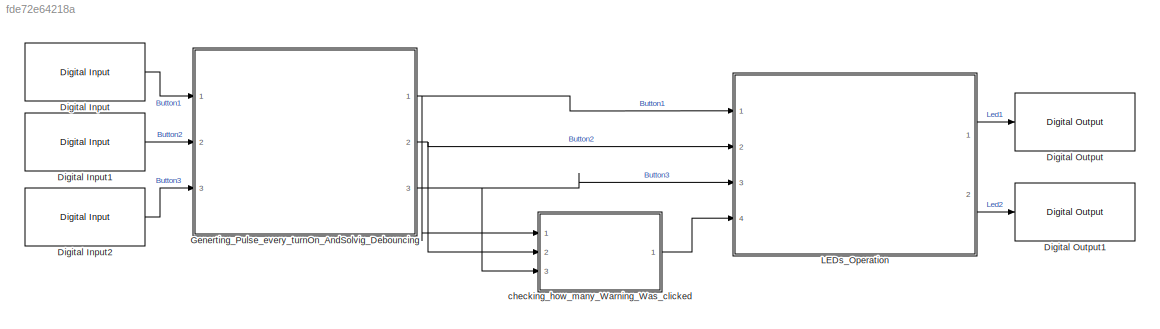
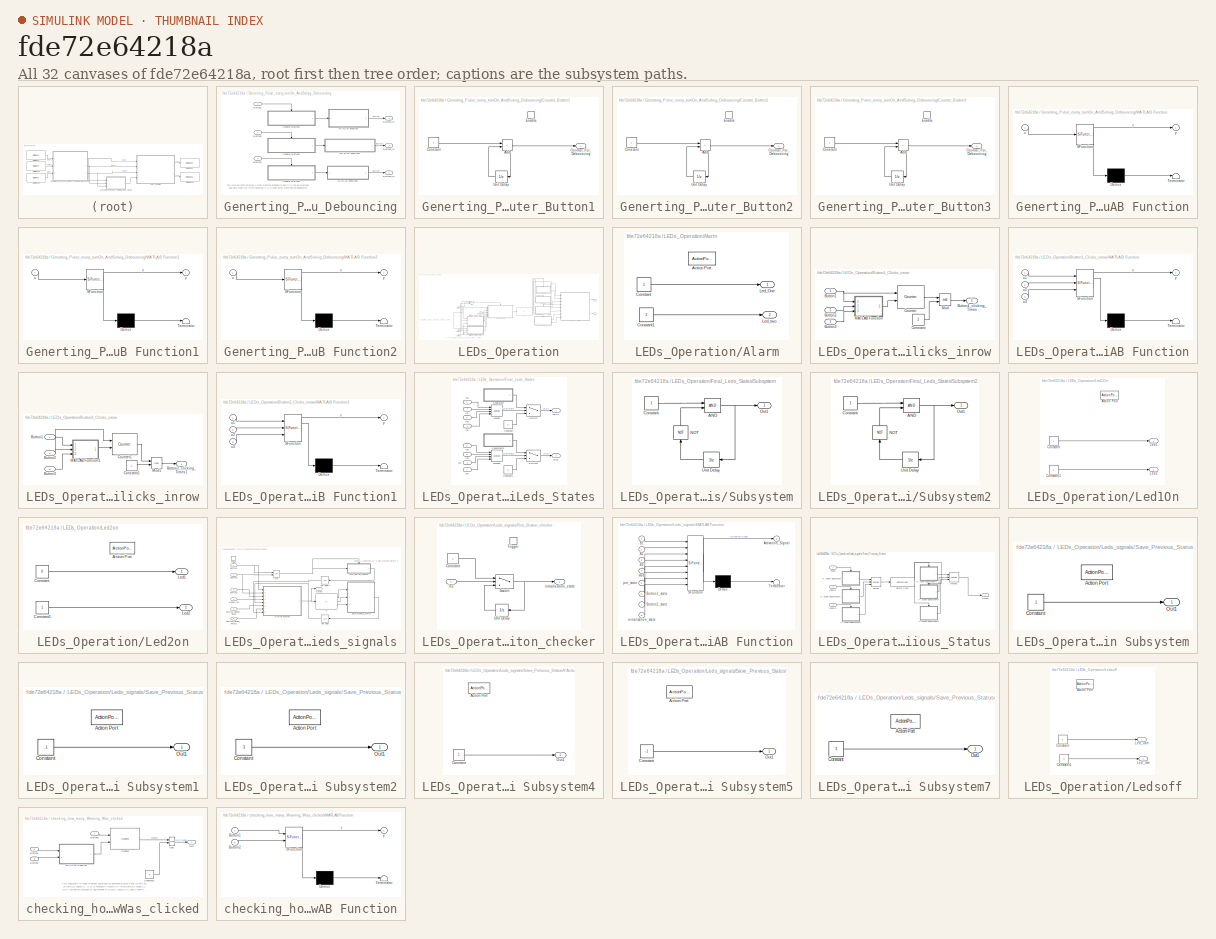
[diagram: thumbnail index - all 32 canvases of the model, root first then tree order]
MODEL slx_fde72e64218a
KIND model
CONFIG AbsTol = auto
CONFIG EnableMultiTasking = off
CONFIG FixedStep = 1e-3
CONFIG MaxStep = auto
CONFIG MinStep = auto
CONFIG RelTol = 1e-3
CONFIG SampleTimeConstraint = Unconstrained
CONFIG SolverName = FixedStepDiscrete
CONFIG StartTime = 0.0
CONFIG StopTime = 10.0
BLOCK [Reference] Digital Input  REF=arduinolib/Digital Input
  Ports = [0, 1]
  SourceBlock = arduinolib/Digital Input
  SourceType = Arduino Digital Input
BLOCK [Reference] Digital Input1  REF=arduinolib/Digital Input
  Ports = [0, 1]
  SourceBlock = arduinolib/Digital Input
  SourceType = Arduino Digital Input
BLOCK [Reference] Digital Input2  REF=arduinolib/Digital Input
  Ports = [0, 1]
  SourceBlock = arduinolib/Digital Input
  SourceType = Arduino Digital Input
BLOCK [Reference] Digital Output  REF=arduinolib/Digital Output
  Ports = [1]
  SourceBlock = arduinolib/Digital Output
  SourceType = Arduino Digital Output
BLOCK [Reference] Digital Output1  REF=arduinolib/Digital Output
  Ports = [1]
  SourceBlock = arduinolib/Digital Output
  SourceType = Arduino Digital Output
BLOCK [SubSystem] Generting_Pulse_every_turnOn_AndSolvig_Debouncing
  Ports = [3, 3]
BLOCK [Inport] Generting_Pulse_every_turnOn_AndSolvig_Debouncing/Button1
BLOCK [Outport] Generting_Pulse_every_turnOn_AndSolvig_Debouncing/Button1_in
BLOCK [Inport] Generting_Pulse_every_turnOn_AndSolvig_Debouncing/Button2
  Port = 2
BLOCK [Outport] Generting_Pulse_every_turnOn_AndSolvig_Debouncing/Button2_in
  Port = 2
BLOCK [Inport] Generting_Pulse_every_turnOn_AndSolvig_Debouncing/Button3
  Port = 3
BLOCK [Outport] Generting_Pulse_every_turnOn_AndSolvig_Debouncing/Button3_in
  Port = 3
BLOCK [SubSystem] Generting_Pulse_every_turnOn_AndSolvig_Debouncing/Counter_Button1
  Ports = [0, 1, 1]
  TreatAsAtomicUnit = on
BLOCK [Sum] Generting_Pulse_every_turnOn_AndSolvig_Debouncing/Counter_Button1/Add
  IconShape = rectangular
  Ports = [2, 1]
BLOCK [Constant] Generting_Pulse_every_turnOn_AndSolvig_Debouncing/Counter_Button1/Constant
BLOCK [Outport] Generting_Pulse_every_turnOn_AndSolvig_Debouncing/Counter_Button1/Counter_For_Debouncing
BLOCK [EnablePort] Generting_Pulse_every_turnOn_AndSolvig_Debouncing/Counter_Button1/Enable
  Ports = []
  StatesWhenEnabling = reset
BLOCK [UnitDelay] Generting_Pulse_every_turnOn_AndSolvig_Debouncing/Counter_Button1/Unit Delay
  HasFrameUpgradeWarning = on
  SampleTime = 1e-3
BLOCK [SubSystem] Generting_Pulse_every_turnOn_AndSolvig_Debouncing/Counter_Button2
  Ports = [0, 1, 1]
  TreatAsAtomicUnit = on
BLOCK [Sum] Generting_Pulse_every_turnOn_AndSolvig_Debouncing/Counter_Button2/Add
  IconShape = rectangular
  Ports = [2, 1]
BLOCK [Constant] Generting_Pulse_every_turnOn_AndSolvig_Debouncing/Counter_Button2/Constant
BLOCK [Outport] Generting_Pulse_every_turnOn_AndSolvig_Debouncing/Counter_Button2/Counter_For_Debouncing
BLOCK [EnablePort] Generting_Pulse_every_turnOn_AndSolvig_Debouncing/Counter_Button2/Enable
  Ports = []
  StatesWhenEnabling = reset
BLOCK [UnitDelay] Generting_Pulse_every_turnOn_AndSolvig_Debouncing/Counter_Button2/Unit Delay
  HasFrameUpgradeWarning = on
  SampleTime = 1e-3
BLOCK [SubSystem] Generting_Pulse_every_turnOn_AndSolvig_Debouncing/Counter_Button3
  Ports = [0, 1, 1]
  TreatAsAtomicUnit = on
BLOCK [Sum] Generting_Pulse_every_turnOn_AndSolvig_Debouncing/Counter_Button3/Add
  IconShape = rectangular
  Ports = [2, 1]
BLOCK [Constant] Generting_Pulse_every_turnOn_AndSolvig_Debouncing/Counter_Button3/Constant
BLOCK [Outport] Generting_Pulse_every_turnOn_AndSolvig_Debouncing/Counter_Button3/Counter_For_Debouncing
BLOCK [EnablePort] Generting_Pulse_every_turnOn_AndSolvig_Debouncing/Counter_Button3/Enable
  Ports = []
  StatesWhenEnabling = reset
BLOCK [UnitDelay] Generting_Pulse_every_turnOn_AndSolvig_Debouncing/Counter_Button3/Unit Delay
  HasFrameUpgradeWarning = on
  SampleTime = 1e-3
BLOCK [SubSystem] Generting_Pulse_every_turnOn_AndSolvig_Debouncing/MATLAB Function
  ErrorFcn = Stateflow.Translate.translate
  PermitHierarchicalResolution = ExplicitOnly
  Ports = [1, 1]
  SFBlockType = MATLAB Function
  TreatAsAtomicUnit = on
BLOCK [Demux] Generting_Pulse_every_turnOn_AndSolvig_Debouncing/MATLAB Function/ Demux 
  Outputs = 1
  Ports = [1, 1]
BLOCK [S-Function] Generting_Pulse_every_turnOn_AndSolvig_Debouncing/MATLAB Function/ SFunction 
  EnableBusSupport = on
  FunctionName = sf_sfun
  PortCounts = [1 2]
  Ports = [1, 2]
  SFcnIsStateOwnerBlock = off
  SFunctionDeploymentMode = off
  Tag = Stateflow S-Function 3
BLOCK [Terminator] Generting_Pulse_every_turnOn_AndSolvig_Debouncing/MATLAB Function/ Terminator 
BLOCK [Inport] Generting_Pulse_every_turnOn_AndSolvig_Debouncing/MATLAB Function/u
BLOCK [Outport] Generting_Pulse_every_turnOn_AndSolvig_Debouncing/MATLAB Function/y
BLOCK [SubSystem] Generting_Pulse_every_turnOn_AndSolvig_Debouncing/MATLAB Function1
  ErrorFcn = Stateflow.Translate.translate
  PermitHierarchicalResolution = ExplicitOnly
  Ports = [1, 1]
  SFBlockType = MATLAB Function
  TreatAsAtomicUnit = on
BLOCK [Demux] Generting_Pulse_every_turnOn_AndSolvig_Debouncing/MATLAB Function1/ Demux 
  Outputs = 1
  Ports = [1, 1]
BLOCK [S-Function] Generting_Pulse_every_turnOn_AndSolvig_Debouncing/MATLAB Function1/ SFunction 
  EnableBusSupport = on
  FunctionName = sf_sfun
  PortCounts = [1 2]
  Ports = [1, 2]
  SFcnIsStateOwnerBlock = off
  SFunctionDeploymentMode = off
  Tag = Stateflow S-Function 4
BLOCK [Terminator] Generting_Pulse_every_turnOn_AndSolvig_Debouncing/MATLAB Function1/ Terminator 
BLOCK [Inport] Generting_Pulse_every_turnOn_AndSolvig_Debouncing/MATLAB Function1/u
BLOCK [Outport] Generting_Pulse_every_turnOn_AndSolvig_Debouncing/MATLAB Function1/y
BLOCK [SubSystem] Generting_Pulse_every_turnOn_AndSolvig_Debouncing/MATLAB Function2
  ErrorFcn = Stateflow.Translate.translate
  PermitHierarchicalResolution = ExplicitOnly
  Ports = [1, 1]
  SFBlockType = MATLAB Function
  TreatAsAtomicUnit = on
BLOCK [Demux] Generting_Pulse_every_turnOn_AndSolvig_Debouncing/MATLAB Function2/ Demux 
  Outputs = 1
  Ports = [1, 1]
BLOCK [S-Function] Generting_Pulse_every_turnOn_AndSolvig_Debouncing/MATLAB Function2/ SFunction 
  EnableBusSupport = on
  FunctionName = sf_sfun
  PortCounts = [1 2]
  Ports = [1, 2]
  SFcnIsStateOwnerBlock = off
  SFunctionDeploymentMode = off
  Tag = Stateflow S-Function 1
BLOCK [Terminator] Generting_Pulse_every_turnOn_AndSolvig_Debouncing/MATLAB Function2/ Terminator 
BLOCK [Inport] Generting_Pulse_every_turnOn_AndSolvig_Debouncing/MATLAB Function2/u
BLOCK [Outport] Generting_Pulse_every_turnOn_AndSolvig_Debouncing/MATLAB Function2/y
BLOCK [SubSystem] LEDs_Operation
  Ports = [4, 2]
BLOCK [SubSystem] LEDs_Operation/Alarm
  Ports = [0, 2, 0, 0, 0, 0, 0, 1]
  TreatAsAtomicUnit = on
BLOCK [ActionPort] LEDs_Operation/Alarm/Action Port
  ActionPortLabel = elseif( u1 ==2 )
BLOCK [Constant] LEDs_Operation/Alarm/Constant
BLOCK [Constant] LEDs_Operation/Alarm/Constant1
BLOCK [Outport] LEDs_Operation/Alarm/Led_One
BLOCK [Outport] LEDs_Operation/Alarm/Led_two
  Port = 2
BLOCK [Inport] LEDs_Operation/Button1
BLOCK [SubSystem] LEDs_Operation/Button1_Clicks_inrow
  Ports = [3, 1]
BLOCK [Inport] LEDs_Operation/Button1_Clicks_inrow/Button1
BLOCK [Outport] LEDs_Operation/Button1_Clicks_inrow/Button1_clicking_Times
BLOCK [Inport] LEDs_Operation/Button1_Clicks_inrow/Button2
  Port = 2
BLOCK [Inport] LEDs_Operation/Button1_Clicks_inrow/Button3
  Port = 3
BLOCK [Constant] LEDs_Operation/Button1_Clicks_inrow/Constant
  Value = 2
BLOCK [Reference] LEDs_Operation/Button1_Clicks_inrow/Counter  REF=dspswit3/Counter
  Ports = [2, 1]
  SourceBlock = dspswit3/Counter
  SourceType = Counter
BLOCK [SubSystem] LEDs_Operation/Button1_Clicks_inrow/MATLAB Function
  ErrorFcn = Stateflow.Translate.translate
  PermitHierarchicalResolution = ExplicitOnly
  Ports = [3, 1]
  SFBlockType = MATLAB Function
  TreatAsAtomicUnit = on
BLOCK [Demux] LEDs_Operation/Button1_Clicks_inrow/MATLAB Function/ Demux 
  Outputs = 1
  Ports = [1, 1]
BLOCK [S-Function] LEDs_Operation/Button1_Clicks_inrow/MATLAB Function/ SFunction 
  EnableBusSupport = on
  FunctionName = sf_sfun
  PortCounts = [3 2]
  Ports = [3, 2]
  SFcnIsStateOwnerBlock = off
  SFunctionDeploymentMode = off
  Tag = Stateflow S-Function 8
BLOCK [Terminator] LEDs_Operation/Button1_Clicks_inrow/MATLAB Function/ Terminator 
BLOCK [Inport] LEDs_Operation/Button1_Clicks_inrow/MATLAB Function/u1
BLOCK [Inport] LEDs_Operation/Button1_Clicks_inrow/MATLAB Function/u2
  Port = 2
BLOCK [Inport] LEDs_Operation/Button1_Clicks_inrow/MATLAB Function/u3
  Port = 3
BLOCK [Outport] LEDs_Operation/Button1_Clicks_inrow/MATLAB Function/y
BLOCK [Math] LEDs_Operation/Button1_Clicks_inrow/Mod
  Operator = mod
  Ports = [2, 1]
BLOCK [Inport] LEDs_Operation/Button2
  Port = 2
BLOCK [SubSystem] LEDs_Operation/Button2_Clicks_inrow
  Ports = [3, 1]
BLOCK [Inport] LEDs_Operation/Button2_Clicks_inrow/Button1
BLOCK [Inport] LEDs_Operation/Button2_Clicks_inrow/Button2
  Port = 2
BLOCK [Outport] LEDs_Operation/Button2_Clicks_inrow/Button2_clicking_Times1
BLOCK [Inport] LEDs_Operation/Button2_Clicks_inrow/Button3
  Port = 3
BLOCK [Constant] LEDs_Operation/Button2_Clicks_inrow/Constant1
  Value = 2
BLOCK [Reference] LEDs_Operation/Button2_Clicks_inrow/Counter1  REF=dspswit3/Counter
  Ports = [2, 1]
  SourceBlock = dspswit3/Counter
  SourceType = Counter
BLOCK [SubSystem] LEDs_Operation/Button2_Clicks_inrow/MATLAB Function1
  ErrorFcn = Stateflow.Translate.translate
  PermitHierarchicalResolution = ExplicitOnly
  Ports = [3, 1]
  SFBlockType = MATLAB Function
  TreatAsAtomicUnit = on
BLOCK [Demux] LEDs_Operation/Button2_Clicks_inrow/MATLAB Function1/ Demux 
  Outputs = 1
  Ports = [1, 1]
BLOCK [S-Function] LEDs_Operation/Button2_Clicks_inrow/MATLAB Function1/ SFunction 
  EnableBusSupport = on
  FunctionName = sf_sfun
  PortCounts = [3 2]
  Ports = [3, 2]
  SFcnIsStateOwnerBlock = off
  SFunctionDeploymentMode = off
  Tag = Stateflow S-Function 6
BLOCK [Terminator] LEDs_Operation/Button2_Clicks_inrow/MATLAB Function1/ Terminator 
BLOCK [Inport] LEDs_Operation/Button2_Clicks_inrow/MATLAB Function1/u1
BLOCK [Inport] LEDs_Operation/Button2_Clicks_inrow/MATLAB Function1/u2
  Port = 2
BLOCK [Inport] LEDs_Operation/Button2_Clicks_inrow/MATLAB Function1/u3
  Port = 3
BLOCK [Outport] LEDs_Operation/Button2_Clicks_inrow/MATLAB Function1/y
BLOCK [Math] LEDs_Operation/Button2_Clicks_inrow/Mod1
  Operator = mod
  Ports = [2, 1]
BLOCK [Inport] LEDs_Operation/Button3
  Port = 3
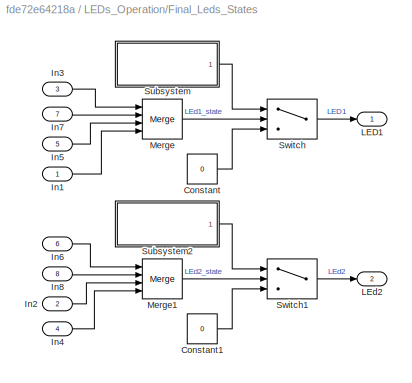
BLOCK [SubSystem] LEDs_Operation/Final_Leds_States
  Ports = [8, 2]
BLOCK [Constant] LEDs_Operation/Final_Leds_States/Constant
  Value = 0
BLOCK [Constant] LEDs_Operation/Final_Leds_States/Constant1
  Value = 0
BLOCK [Inport] LEDs_Operation/Final_Leds_States/In1
BLOCK [Inport] LEDs_Operation/Final_Leds_States/In2
  Port = 2
BLOCK [Inport] LEDs_Operation/Final_Leds_States/In3
  Port = 3
BLOCK [Inport] LEDs_Operation/Final_Leds_States/In4
  Port = 4
BLOCK [Inport] LEDs_Operation/Final_Leds_States/In5
  Port = 5
BLOCK [Inport] LEDs_Operation/Final_Leds_States/In6
  Port = 6
BLOCK [Inport] LEDs_Operation/Final_Leds_States/In7
  Port = 7
BLOCK [Inport] LEDs_Operation/Final_Leds_States/In8
  Port = 8
BLOCK [Outport] LEDs_Operation/Final_Leds_States/LED1
BLOCK [Outport] LEDs_Operation/Final_Leds_States/LEd2
  Port = 2
BLOCK [Merge] LEDs_Operation/Final_Leds_States/Merge
  Inputs = 4
  Ports = [4, 1]
BLOCK [Merge] LEDs_Operation/Final_Leds_States/Merge1
  Inputs = 4
  Ports = [4, 1]
BLOCK [SubSystem] LEDs_Operation/Final_Leds_States/Subsystem
  Ports = [0, 1]
BLOCK [Logic] LEDs_Operation/Final_Leds_States/Subsystem/AND
  AllPortsSameDT = off
  IconShape = distinctive
  OutDataTypeStr = boolean
  Ports = [2, 1]
BLOCK [Constant] LEDs_Operation/Final_Leds_States/Subsystem/Constant
BLOCK [Logic] LEDs_Operation/Final_Leds_States/Subsystem/NOT
  AllPortsSameDT = off
  IconShape = distinctive
  NameLocation = right
  Operator = NOT
  OutDataTypeStr = boolean
  Ports = [1, 1]
BLOCK [Outport] LEDs_Operation/Final_Leds_States/Subsystem/Out1
BLOCK [UnitDelay] LEDs_Operation/Final_Leds_States/Subsystem/Unit Delay
  HasFrameUpgradeWarning = on
  InitialCondition = 1
  SampleTime = 0.4
BLOCK [SubSystem] LEDs_Operation/Final_Leds_States/Subsystem2
  Ports = [0, 1]
BLOCK [Logic] LEDs_Operation/Final_Leds_States/Subsystem2/AND
  AllPortsSameDT = off
  IconShape = distinctive
  OutDataTypeStr = boolean
  Ports = [2, 1]
BLOCK [Constant] LEDs_Operation/Final_Leds_States/Subsystem2/Constant
BLOCK [Logic] LEDs_Operation/Final_Leds_States/Subsystem2/NOT
  AllPortsSameDT = off
  IconShape = distinctive
  NameLocation = right
  Operator = NOT
  OutDataTypeStr = boolean
  Ports = [1, 1]
BLOCK [Outport] LEDs_Operation/Final_Leds_States/Subsystem2/Out1
BLOCK [UnitDelay] LEDs_Operation/Final_Leds_States/Subsystem2/Unit Delay
  HasFrameUpgradeWarning = on
  InitialCondition = 1
  SampleTime = 0.4
BLOCK [Switch] LEDs_Operation/Final_Leds_States/Switch
  Criteria = u2 > Threshold
  InputSameDT = off
  SaturateOnIntegerOverflow = off
BLOCK [Switch] LEDs_Operation/Final_Leds_States/Switch1
  Criteria = u2 > Threshold
  InputSameDT = off
  SaturateOnIntegerOverflow = off
BLOCK [If] LEDs_Operation/If
  ElseIfExpressions = u1 == -1 , u1 ==2 , u1==3
  IfExpression = u1 ==1
  Ports = [1, 4]
  ShowElse = off
BLOCK [Outport] LEDs_Operation/Led1
BLOCK [SubSystem] LEDs_Operation/Led1On
  Ports = [0, 2, 0, 0, 0, 0, 0, 1]
  TreatAsAtomicUnit = on
BLOCK [ActionPort] LEDs_Operation/Led1On/Action Port
  ActionPortLabel = if(u1 ==1)
BLOCK [Constant] LEDs_Operation/Led1On/Constant
BLOCK [Constant] LEDs_Operation/Led1On/Constant1
  Value = 0
BLOCK [Outport] LEDs_Operation/Led1On/Led1
BLOCK [Outport] LEDs_Operation/Led1On/Led2
  Port = 2
BLOCK [Outport] LEDs_Operation/Led2
  Port = 2
BLOCK [SubSystem] LEDs_Operation/Led2on
  Ports = [0, 2, 0, 0, 0, 0, 0, 1]
  TreatAsAtomicUnit = on
BLOCK [ActionPort] LEDs_Operation/Led2on/Action Port
  ActionPortLabel = elseif(u1 == -1 )
BLOCK [Constant] LEDs_Operation/Led2on/Constant
  Value = 0
BLOCK [Constant] LEDs_Operation/Led2on/Constant1
BLOCK [Outport] LEDs_Operation/Led2on/Led1
BLOCK [Outport] LEDs_Operation/Led2on/Led2
  Port = 2
BLOCK [SubSystem] LEDs_Operation/Leds_signals
  Ports = [6, 1, 0, 1]
  TreatAsAtomicUnit = on
BLOCK [Inport] LEDs_Operation/Leds_signals/Button1
BLOCK [Inport] LEDs_Operation/Leds_signals/Button1_clicking_Times
  Port = 5
BLOCK [Inport] LEDs_Operation/Leds_signals/Button2
  Port = 2
BLOCK [Inport] LEDs_Operation/Leds_signals/Button2_clicking_Times1
  Port = 6
BLOCK [Inport] LEDs_Operation/Leds_signals/Button3
  Port = 3
BLOCK [SubSystem] LEDs_Operation/Leds_signals/First_Button_checker
  Ports = [1, 1, 0, 1]
  TreatAsAtomicUnit = on
BLOCK [Constant] LEDs_Operation/Leds_signals/First_Button_checker/Constant
BLOCK [Inport] LEDs_Operation/Leds_signals/First_Button_checker/In1
BLOCK [Switch] LEDs_Operation/Leds_signals/First_Button_checker/Switch
  Criteria = u2 > Threshold
  InputSameDT = off
  SaturateOnIntegerOverflow = off
BLOCK [TriggerPort] LEDs_Operation/Leds_signals/First_Button_checker/Trigger
  Ports = []
  StatesWhenEnabling = held
  VariantControl = (inherit)
BLOCK [UnitDelay] LEDs_Operation/Leds_signals/First_Button_checker/Unit Delay
  HasFrameUpgradeWarning = on
  SampleTime = -1
BLOCK [Outport] LEDs_Operation/Leds_signals/First_Button_checker/initialization_state
BLOCK [If] LEDs_Operation/Leds_signals/If
  ElseIfExpressions = u1 == -1 , u1==3
  IfExpression = u1 == 1
  Ports = [1, 3]
  ShowElse = off
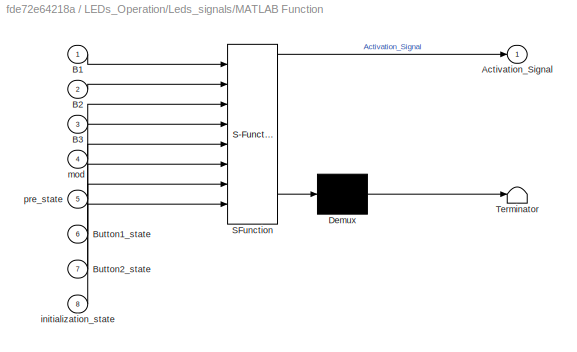
BLOCK [SubSystem] LEDs_Operation/Leds_signals/MATLAB Function
  ErrorFcn = Stateflow.Translate.translate
  PermitHierarchicalResolution = ExplicitOnly
  Ports = [8, 1]
  SFBlockType = MATLAB Function
  TreatAsAtomicUnit = on
BLOCK [Demux] LEDs_Operation/Leds_signals/MATLAB Function/ Demux 
  Outputs = 1
  Ports = [1, 1]
BLOCK [S-Function] LEDs_Operation/Leds_signals/MATLAB Function/ SFunction 
  EnableBusSupport = on
  FunctionName = sf_sfun
  PortCounts = [8 2]
  Ports = [8, 2]
  SFcnIsStateOwnerBlock = off
  SFunctionDeploymentMode = off
  Tag = Stateflow S-Function 5
BLOCK [Terminator] LEDs_Operation/Leds_signals/MATLAB Function/ Terminator 
BLOCK [Outport] LEDs_Operation/Leds_signals/MATLAB Function/Activation_Signal
BLOCK [Inport] LEDs_Operation/Leds_signals/MATLAB Function/B1
BLOCK [Inport] LEDs_Operation/Leds_signals/MATLAB Function/B2
  Port = 2
BLOCK [Inport] LEDs_Operation/Leds_signals/MATLAB Function/B3
  Port = 3
BLOCK [Inport] LEDs_Operation/Leds_signals/MATLAB Function/Button1_state
  Port = 6
BLOCK [Inport] LEDs_Operation/Leds_signals/MATLAB Function/Button2_state
  Port = 7
BLOCK [Inport] LEDs_Operation/Leds_signals/MATLAB Function/initialization_state
  Port = 8
BLOCK [Inport] LEDs_Operation/Leds_signals/MATLAB Function/mod
  Port = 4
BLOCK [Inport] LEDs_Operation/Leds_signals/MATLAB Function/pre_state
  Port = 5
BLOCK [Inport] LEDs_Operation/Leds_signals/Moduls_res
  Port = 4
BLOCK [Logic] LEDs_Operation/Leds_signals/OR
  AllPortsSameDT = off
  IconShape = distinctive
  Operator = OR
  OutDataTypeStr = boolean
  Ports = [2, 1]
BLOCK [Outport] LEDs_Operation/Leds_signals/Output
BLOCK [SubSystem] LEDs_Operation/Leds_signals/Save_Previous_Status
  Ports = [3, 1]
BLOCK [SubSystem] LEDs_Operation/Leds_signals/Save_Previous_Status/If Action Subsystem
  Ports = [0, 1, 0, 0, 0, 0, 0, 1]
  TreatAsAtomicUnit = on
BLOCK [ActionPort] LEDs_Operation/Leds_signals/Save_Previous_Status/If Action Subsystem/Action Port
  ActionPortLabel = if(u1 == 1)
BLOCK [Constant] LEDs_Operation/Leds_signals/Save_Previous_Status/If Action Subsystem/Constant
BLOCK [Outport] LEDs_Operation/Leds_signals/Save_Previous_Status/If Action Subsystem/Out1
BLOCK [SubSystem] LEDs_Operation/Leds_signals/Save_Previous_Status/If Action Subsystem1
  Ports = [0, 1, 0, 0, 0, 0, 0, 1]
  TreatAsAtomicUnit = on
BLOCK [ActionPort] LEDs_Operation/Leds_signals/Save_Previous_Status/If Action Subsystem1/Action Port
  ActionPortLabel = elseif(u1 == -1 )
BLOCK [Constant] LEDs_Operation/Leds_signals/Save_Previous_Status/If Action Subsystem1/Constant
  Value = -1
BLOCK [Outport] LEDs_Operation/Leds_signals/Save_Previous_Status/If Action Subsystem1/Out1
BLOCK [SubSystem] LEDs_Operation/Leds_signals/Save_Previous_Status/If Action Subsystem2
  Ports = [0, 1, 0, 0, 0, 0, 0, 1]
  TreatAsAtomicUnit = on
BLOCK [ActionPort] LEDs_Operation/Leds_signals/Save_Previous_Status/If Action Subsystem2/Action Port
  ActionPortLabel = elseif( u1==3 )
BLOCK [Constant] LEDs_Operation/Leds_signals/Save_Previous_Status/If Action Subsystem2/Constant
  Value = 3
BLOCK [Outport] LEDs_Operation/Leds_signals/Save_Previous_Status/If Action Subsystem2/Out1
BLOCK [SubSystem] LEDs_Operation/Leds_signals/Save_Previous_Status/If Action Subsystem4
  Ports = [0, 1, 0, 0, 0, 0, 0, 1]
  TreatAsAtomicUnit = on
BLOCK [ActionPort] LEDs_Operation/Leds_signals/Save_Previous_Status/If Action Subsystem4/Action Port
  ActionPortLabel = case [ 1 ]:
BLOCK [Constant] LEDs_Operation/Leds_signals/Save_Previous_Status/If Action Subsystem4/Constant
BLOCK [Outport] LEDs_Operation/Leds_signals/Save_Previous_Status/If Action Subsystem4/Out1
BLOCK [SubSystem] LEDs_Operation/Leds_signals/Save_Previous_Status/If Action Subsystem5
  Ports = [0, 1, 0, 0, 0, 0, 0, 1]
  TreatAsAtomicUnit = on
BLOCK [ActionPort] LEDs_Operation/Leds_signals/Save_Previous_Status/If Action Subsystem5/Action Port
  ActionPortLabel = case [ -1 ]:
BLOCK [Constant] LEDs_Operation/Leds_signals/Save_Previous_Status/If Action Subsystem5/Constant
  Value = -1
BLOCK [Outport] LEDs_Operation/Leds_signals/Save_Previous_Status/If Action Subsystem5/Out1
BLOCK [SubSystem] LEDs_Operation/Leds_signals/Save_Previous_Status/If Action Subsystem7
  Ports = [0, 1, 0, 0, 0, 0, 0, 1]
  TreatAsAtomicUnit = on
BLOCK [ActionPort] LEDs_Operation/Leds_signals/Save_Previous_Status/If Action Subsystem7/Action Port
  ActionPortLabel = case [ 3 ]:
BLOCK [Constant] LEDs_Operation/Leds_signals/Save_Previous_Status/If Action Subsystem7/Constant
  Value = 3
BLOCK [Outport] LEDs_Operation/Leds_signals/Save_Previous_Status/If Action Subsystem7/Out1
BLOCK [Inport] LEDs_Operation/Leds_signals/Save_Previous_Status/Inport
BLOCK [Inport] LEDs_Operation/Leds_signals/Save_Previous_Status/Inport1
  Port = 2
BLOCK [Inport] LEDs_Operation/Leds_signals/Save_Previous_Status/Inport2
  Port = 3
BLOCK [Merge] LEDs_Operation/Leds_signals/Save_Previous_Status/Merge
  Inputs = 3
  Ports = [3, 1]
BLOCK [Merge] LEDs_Operation/Leds_signals/Save_Previous_Status/Merge1
  Inputs = 3
  Ports = [3, 1]
BLOCK [Outport] LEDs_Operation/Leds_signals/Save_Previous_Status/Output
BLOCK [SwitchCase] LEDs_Operation/Leds_signals/Save_Previous_Status/Switch Case
  CaseConditions = {1  ;-1  ;3}
  Ports = [1, 3]
  ShowDefaultCase = off
BLOCK [TriggerPort] LEDs_Operation/Leds_signals/Trigger
  PortDimensions = 1
  Ports = []
  StatesWhenEnabling = held
  VariantControl = (inherit)
BLOCK [UnitDelay] LEDs_Operation/Leds_signals/Unit Delay
  HasFrameUpgradeWarning = on
  SampleTime = -1
BLOCK [UnitDelay] LEDs_Operation/Leds_signals/Unit Delay1
  HasFrameUpgradeWarning = on
  SampleTime = -1
BLOCK [SubSystem] LEDs_Operation/Ledsoff
  Ports = [0, 2, 0, 0, 0, 0, 0, 1]
  TreatAsAtomicUnit = on
BLOCK [ActionPort] LEDs_Operation/Ledsoff/Action Port
  ActionPortLabel = elseif( u1==3)
BLOCK [Constant] LEDs_Operation/Ledsoff/Constant
  Value = 0
BLOCK [Constant] LEDs_Operation/Ledsoff/Constant1
  Value = 0
BLOCK [Outport] LEDs_Operation/Ledsoff/Led_One
BLOCK [Outport] LEDs_Operation/Ledsoff/Led_two
  Port = 2
BLOCK [Inport] LEDs_Operation/Moduls_res
  Port = 4
BLOCK [Logic] LEDs_Operation/OR
  AllPortsSameDT = off
  IconShape = distinctive
  Inputs = 3
  Operator = OR
  OutDataTypeStr = boolean
  Ports = [3, 1]
BLOCK [SubSystem] checking_how_many_Warning_Was_clicked
  Ports = [3, 1]
BLOCK [Inport] checking_how_many_Warning_Was_clicked/Button1
BLOCK [Inport] checking_how_many_Warning_Was_clicked/Button2
  Port = 2
BLOCK [Inport] checking_how_many_Warning_Was_clicked/Button3
  Port = 3
BLOCK [Constant] checking_how_many_Warning_Was_clicked/Constant3
  Value = 2
BLOCK [Reference] checking_how_many_Warning_Was_clicked/Counter  REF=dspswit3/Counter
  Ports = [2, 1]
  SourceBlock = dspswit3/Counter
  SourceType = Counter
BLOCK [SubSystem] checking_how_many_Warning_Was_clicked/MATLAB Function
  ErrorFcn = Stateflow.Translate.translate
  PermitHierarchicalResolution = ExplicitOnly
  Ports = [2, 1]
  SFBlockType = MATLAB Function
  TreatAsAtomicUnit = on
BLOCK [Demux] checking_how_many_Warning_Was_clicked/MATLAB Function/ Demux 
  Outputs = 1
  Ports = [1, 1]
BLOCK [S-Function] checking_how_many_Warning_Was_clicked/MATLAB Function/ SFunction 
  EnableBusSupport = on
  FunctionName = sf_sfun
  PortCounts = [2 2]
  Ports = [2, 2]
  SFcnIsStateOwnerBlock = off
  SFunctionDeploymentMode = off
  Tag = Stateflow S-Function 2
BLOCK [Terminator] checking_how_many_Warning_Was_clicked/MATLAB Function/ Terminator 
BLOCK [Inport] checking_how_many_Warning_Was_clicked/MATLAB Function/Button1
BLOCK [Inport] checking_how_many_Warning_Was_clicked/MATLAB Function/Button2
  Port = 2
BLOCK [Outport] checking_how_many_Warning_Was_clicked/MATLAB Function/y
BLOCK [Math] checking_how_many_Warning_Was_clicked/Mod
  Operator = mod
  Ports = [2, 1]
BLOCK [Outport] checking_how_many_Warning_Was_clicked/Out1
ANNOTATION Generting_Pulse_every_turnOn_AndSolvig_Debouncing: This matlab function gives 1 when a button pressed to use it in the calculations and zero when we finish checking it is clicked after eleminating debouncing
ANNOTATION LEDs_Operation: checks_if_Button1_clicked_how_many_times_in_series
ANNOTATION LEDs_Operation/Leds_signals: checks_If_Button1_Or 2 was pressed before 3
ANNOTATION checking_how_many_Warning_Was_clicked: This subsystem is made to detect coordinatiion between Button 3 and its self as if it is not pressed yet it results in output zeros values as the matlab function doesn't work so rem(2,2) equals 0 , if it is pressed it results in y =3 so rem(3,2) equals 1 and if it is pressed again it results in 4 from matlab func so the out is rem(4,2) equals 0 So if the buttom pressed for odd number of time it re...<+38ch>
LINE Digital Input1:1 -> Generting_Pulse_every_turnOn_AndSolvig_Debouncing:2
LINE Digital Input2:1 -> Generting_Pulse_every_turnOn_AndSolvig_Debouncing:3
LINE Digital Input:1 -> Generting_Pulse_every_turnOn_AndSolvig_Debouncing:1
LINE Generting_Pulse_every_turnOn_AndSolvig_Debouncing/Button1:1 -> Generting_Pulse_every_turnOn_AndSolvig_Debouncing/Counter_Button1:enable
LINE Generting_Pulse_every_turnOn_AndSolvig_Debouncing/Button2:1 -> Generting_Pulse_every_turnOn_AndSolvig_Debouncing/Counter_Button2:enable
LINE Generting_Pulse_every_turnOn_AndSolvig_Debouncing/Button3:1 -> Generting_Pulse_every_turnOn_AndSolvig_Debouncing/Counter_Button3:enable
NET Generting_Pulse_every_turnOn_AndSolvig_Debouncing/Counter_Button1/Add:1 -> Generting_Pulse_every_turnOn_AndSolvig_Debouncing/Counter_Button1/Counter_For_Debouncing:1, Generting_Pulse_every_turnOn_AndSolvig_Debouncing/Counter_Button1/Unit Delay:1
LINE Generting_Pulse_every_turnOn_AndSolvig_Debouncing/Counter_Button1/Constant:1 -> Generting_Pulse_every_turnOn_AndSolvig_Debouncing/Counter_Button1/Add:1
LINE Generting_Pulse_every_turnOn_AndSolvig_Debouncing/Counter_Button1/Unit Delay:1 -> Generting_Pulse_every_turnOn_AndSolvig_Debouncing/Counter_Button1/Add:2
LINE Generting_Pulse_every_turnOn_AndSolvig_Debouncing/Counter_Button1:1 -> Generting_Pulse_every_turnOn_AndSolvig_Debouncing/MATLAB Function:1
NET Generting_Pulse_every_turnOn_AndSolvig_Debouncing/Counter_Button2/Add:1 -> Generting_Pulse_every_turnOn_AndSolvig_Debouncing/Counter_Button2/Counter_For_Debouncing:1, Generting_Pulse_every_turnOn_AndSolvig_Debouncing/Counter_Button2/Unit Delay:1
LINE Generting_Pulse_every_turnOn_AndSolvig_Debouncing/Counter_Button2/Constant:1 -> Generting_Pulse_every_turnOn_AndSolvig_Debouncing/Counter_Button2/Add:1
LINE Generting_Pulse_every_turnOn_AndSolvig_Debouncing/Counter_Button2/Unit Delay:1 -> Generting_Pulse_every_turnOn_AndSolvig_Debouncing/Counter_Button2/Add:2
LINE Generting_Pulse_every_turnOn_AndSolvig_Debouncing/Counter_Button2:1 -> Generting_Pulse_every_turnOn_AndSolvig_Debouncing/MATLAB Function1:1
NET Generting_Pulse_every_turnOn_AndSolvig_Debouncing/Counter_Button3/Add:1 -> Generting_Pulse_every_turnOn_AndSolvig_Debouncing/Counter_Button3/Counter_For_Debouncing:1, Generting_Pulse_every_turnOn_AndSolvig_Debouncing/Counter_Button3/Unit Delay:1
LINE Generting_Pulse_every_turnOn_AndSolvig_Debouncing/Counter_Button3/Constant:1 -> Generting_Pulse_every_turnOn_AndSolvig_Debouncing/Counter_Button3/Add:1
LINE Generting_Pulse_every_turnOn_AndSolvig_Debouncing/Counter_Button3/Unit Delay:1 -> Generting_Pulse_every_turnOn_AndSolvig_Debouncing/Counter_Button3/Add:2
LINE Generting_Pulse_every_turnOn_AndSolvig_Debouncing/Counter_Button3:1 -> Generting_Pulse_every_turnOn_AndSolvig_Debouncing/MATLAB Function2:1
LINE Generting_Pulse_every_turnOn_AndSolvig_Debouncing/MATLAB Function1:1 -> Generting_Pulse_every_turnOn_AndSolvig_Debouncing/Button2_in:1
LINE Generting_Pulse_every_turnOn_AndSolvig_Debouncing/MATLAB Function2:1 -> Generting_Pulse_every_turnOn_AndSolvig_Debouncing/Button3_in:1
LINE Generting_Pulse_every_turnOn_AndSolvig_Debouncing/MATLAB Function:1 -> Generting_Pulse_every_turnOn_AndSolvig_Debouncing/Button1_in:1
NET Generting_Pulse_every_turnOn_AndSolvig_Debouncing:1 -> LEDs_Operation:1, checking_how_many_Warning_Was_clicked:1
NET Generting_Pulse_every_turnOn_AndSolvig_Debouncing:2 -> LEDs_Operation:2, checking_how_many_Warning_Was_clicked:2
NET Generting_Pulse_every_turnOn_AndSolvig_Debouncing:3 -> LEDs_Operation:3, checking_how_many_Warning_Was_clicked:3
LINE LEDs_Operation/Alarm/Constant1:1 -> LEDs_Operation/Alarm/Led_two:1
LINE LEDs_Operation/Alarm/Constant:1 -> LEDs_Operation/Alarm/Led_One:1
LINE LEDs_Operation/Alarm:1 -> LEDs_Operation/Final_Leds_States:5
LINE LEDs_Operation/Alarm:2 -> LEDs_Operation/Final_Leds_States:6
NET LEDs_Operation/Button1:1 -> LEDs_Operation/Button1_Clicks_inrow:1, LEDs_Operation/Button2_Clicks_inrow:1, LEDs_Operation/Leds_signals:1, LEDs_Operation/OR:2
NET LEDs_Operation/Button1_Clicks_inrow/Button1:1 -> LEDs_Operation/Button1_Clicks_inrow/Counter:1, LEDs_Operation/Button1_Clicks_inrow/MATLAB Function:1
LINE LEDs_Operation/Button1_Clicks_inrow/Button2:1 -> LEDs_Operation/Button1_Clicks_inrow/MATLAB Function:2
LINE LEDs_Operation/Button1_Clicks_inrow/Button3:1 -> LEDs_Operation/Button1_Clicks_inrow/MATLAB Function:3
LINE LEDs_Operation/Button1_Clicks_inrow/Constant:1 -> LEDs_Operation/Button1_Clicks_inrow/Mod:2
LINE LEDs_Operation/Button1_Clicks_inrow/Counter:1 -> LEDs_Operation/Button1_Clicks_inrow/Mod:1
LINE LEDs_Operation/Button1_Clicks_inrow/MATLAB Function:1 -> LEDs_Operation/Button1_Clicks_inrow/Counter:2
LINE LEDs_Operation/Button1_Clicks_inrow/Mod:1 -> LEDs_Operation/Button1_Clicks_inrow/Button1_clicking_Times:1
LINE LEDs_Operation/Button1_Clicks_inrow:1 -> LEDs_Operation/Leds_signals:5
NET LEDs_Operation/Button2:1 -> LEDs_Operation/Button1_Clicks_inrow:2, LEDs_Operation/Button2_Clicks_inrow:2, LEDs_Operation/Leds_signals:2, LEDs_Operation/OR:1
LINE LEDs_Operation/Button2_Clicks_inrow/Button1:1 -> LEDs_Operation/Button2_Clicks_inrow/MATLAB Function1:1
NET LEDs_Operation/Button2_Clicks_inrow/Button2:1 -> LEDs_Operation/Button2_Clicks_inrow/Counter1:1, LEDs_Operation/Button2_Clicks_inrow/MATLAB Function1:2
LINE LEDs_Operation/Button2_Clicks_inrow/Button3:1 -> LEDs_Operation/Button2_Clicks_inrow/MATLAB Function1:3
LINE LEDs_Operation/Button2_Clicks_inrow/Constant1:1 -> LEDs_Operation/Button2_Clicks_inrow/Mod1:2
LINE LEDs_Operation/Button2_Clicks_inrow/Counter1:1 -> LEDs_Operation/Button2_Clicks_inrow/Mod1:1
LINE LEDs_Operation/Button2_Clicks_inrow/MATLAB Function1:1 -> LEDs_Operation/Button2_Clicks_inrow/Counter1:2
LINE LEDs_Operation/Button2_Clicks_inrow/Mod1:1 -> LEDs_Operation/Button2_Clicks_inrow/Button2_clicking_Times1:1
LINE LEDs_Operation/Button2_Clicks_inrow:1 -> LEDs_Operation/Leds_signals:6
NET LEDs_Operation/Button3:1 -> LEDs_Operation/Button1_Clicks_inrow:3, LEDs_Operation/Button2_Clicks_inrow:3, LEDs_Operation/Leds_signals:3, LEDs_Operation/OR:3
LINE LEDs_Operation/Final_Leds_States/Constant1:1 -> LEDs_Operation/Final_Leds_States/Switch1:3
LINE LEDs_Operation/Final_Leds_States/Constant:1 -> LEDs_Operation/Final_Leds_States/Switch:3
LINE LEDs_Operation/Final_Leds_States/In1:1 -> LEDs_Operation/Final_Leds_States/Merge:4
LINE LEDs_Operation/Final_Leds_States/In2:1 -> LEDs_Operation/Final_Leds_States/Merge1:3
LINE LEDs_Operation/Final_Leds_States/In3:1 -> LEDs_Operation/Final_Leds_States/Merge:1
LINE LEDs_Operation/Final_Leds_States/In4:1 -> LEDs_Operation/Final_Leds_States/Merge1:4
LINE LEDs_Operation/Final_Leds_States/In5:1 -> LEDs_Operation/Final_Leds_States/Merge:3
LINE LEDs_Operation/Final_Leds_States/In6:1 -> LEDs_Operation/Final_Leds_States/Merge1:1
LINE LEDs_Operation/Final_Leds_States/In7:1 -> LEDs_Operation/Final_Leds_States/Merge:2
LINE LEDs_Operation/Final_Leds_States/In8:1 -> LEDs_Operation/Final_Leds_States/Merge1:2
LINE LEDs_Operation/Final_Leds_States/Merge1:1 -> LEDs_Operation/Final_Leds_States/Switch1:2
LINE LEDs_Operation/Final_Leds_States/Merge:1 -> LEDs_Operation/Final_Leds_States/Switch:2
NET LEDs_Operation/Final_Leds_States/Subsystem/AND:1 -> LEDs_Operation/Final_Leds_States/Subsystem/Out1:1, LEDs_Operation/Final_Leds_States/Subsystem/Unit Delay:1
LINE LEDs_Operation/Final_Leds_States/Subsystem/Constant:1 -> LEDs_Operation/Final_Leds_States/Subsystem/AND:1
LINE LEDs_Operation/Final_Leds_States/Subsystem/NOT:1 -> LEDs_Operation/Final_Leds_States/Subsystem/AND:2
LINE LEDs_Operation/Final_Leds_States/Subsystem/Unit Delay:1 -> LEDs_Operation/Final_Leds_States/Subsystem/NOT:1
NET LEDs_Operation/Final_Leds_States/Subsystem2/AND:1 -> LEDs_Operation/Final_Leds_States/Subsystem2/Out1:1, LEDs_Operation/Final_Leds_States/Subsystem2/Unit Delay:1
LINE LEDs_Operation/Final_Leds_States/Subsystem2/Constant:1 -> LEDs_Operation/Final_Leds_States/Subsystem2/AND:1
LINE LEDs_Operation/Final_Leds_States/Subsystem2/NOT:1 -> LEDs_Operation/Final_Leds_States/Subsystem2/AND:2
LINE LEDs_Operation/Final_Leds_States/Subsystem2/Unit Delay:1 -> LEDs_Operation/Final_Leds_States/Subsystem2/NOT:1
LINE LEDs_Operation/Final_Leds_States/Subsystem2:1 -> LEDs_Operation/Final_Leds_States/Switch1:1
LINE LEDs_Operation/Final_Leds_States/Subsystem:1 -> LEDs_Operation/Final_Leds_States/Switch:1
LINE LEDs_Operation/Final_Leds_States/Switch1:1 -> LEDs_Operation/Final_Leds_States/LEd2:1
LINE LEDs_Operation/Final_Leds_States/Switch:1 -> LEDs_Operation/Final_Leds_States/LED1:1
LINE LEDs_Operation/Final_Leds_States:1 -> LEDs_Operation/Led1:1
LINE LEDs_Operation/Final_Leds_States:2 -> LEDs_Operation/Led2:1
LINE LEDs_Operation/If:1 -> LEDs_Operation/Led1On:ifaction
LINE LEDs_Operation/If:2 -> LEDs_Operation/Led2on:ifaction
LINE LEDs_Operation/If:3 -> LEDs_Operation/Alarm:ifaction
LINE LEDs_Operation/If:4 -> LEDs_Operation/Ledsoff:ifaction
LINE LEDs_Operation/Led1On/Constant1:1 -> LEDs_Operation/Led1On/Led2:1
LINE LEDs_Operation/Led1On/Constant:1 -> LEDs_Operation/Led1On/Led1:1
LINE LEDs_Operation/Led1On:1 -> LEDs_Operation/Final_Leds_States:1
LINE LEDs_Operation/Led1On:2 -> LEDs_Operation/Final_Leds_States:2
LINE LEDs_Operation/Led2on/Constant1:1 -> LEDs_Operation/Led2on/Led2:1
LINE LEDs_Operation/Led2on/Constant:1 -> LEDs_Operation/Led2on/Led1:1
LINE LEDs_Operation/Led2on:1 -> LEDs_Operation/Final_Leds_States:3
LINE LEDs_Operation/Led2on:2 -> LEDs_Operation/Final_Leds_States:4
NET LEDs_Operation/Leds_signals/Button1:1 -> LEDs_Operation/Leds_signals/MATLAB Function:1, LEDs_Operation/Leds_signals/OR:1
LINE LEDs_Operation/Leds_signals/Button1_clicking_Times:1 -> LEDs_Operation/Leds_signals/MATLAB Function:6
NET LEDs_Operation/Leds_signals/Button2:1 -> LEDs_Operation/Leds_signals/MATLAB Function:2, LEDs_Operation/Leds_signals/OR:2
LINE LEDs_Operation/Leds_signals/Button2_clicking_Times1:1 -> LEDs_Operation/Leds_signals/MATLAB Function:7
LINE LEDs_Operation/Leds_signals/Button3:1 -> LEDs_Operation/Leds_signals/MATLAB Function:3
LINE LEDs_Operation/Leds_signals/First_Button_checker/Constant:1 -> LEDs_Operation/Leds_signals/First_Button_checker/Switch:1
LINE LEDs_Operation/Leds_signals/First_Button_checker/In1:1 -> LEDs_Operation/Leds_signals/First_Button_checker/Switch:2
NET LEDs_Operation/Leds_signals/First_Button_checker/Switch:1 -> LEDs_Operation/Leds_signals/First_Button_checker/Unit Delay:1, LEDs_Operation/Leds_signals/First_Button_checker/initialization_state:1
LINE LEDs_Operation/Leds_signals/First_Button_checker/Unit Delay:1 -> LEDs_Operation/Leds_signals/First_Button_checker/Switch:3
LINE LEDs_Operation/Leds_signals/First_Button_checker:1 -> LEDs_Operation/Leds_signals/Unit Delay1:1
LINE LEDs_Operation/Leds_signals/If:1 -> LEDs_Operation/Leds_signals/Save_Previous_Status:1
LINE LEDs_Operation/Leds_signals/If:2 -> LEDs_Operation/Leds_signals/Save_Previous_Status:2
LINE LEDs_Operation/Leds_signals/If:3 -> LEDs_Operation/Leds_signals/Save_Previous_Status:3
NET LEDs_Operation/Leds_signals/MATLAB Function:1 -> LEDs_Operation/Leds_signals/If:1, LEDs_Operation/Leds_signals/Output:1
LINE LEDs_Operation/Leds_signals/Moduls_res:1 -> LEDs_Operation/Leds_signals/MATLAB Function:4
NET LEDs_Operation/Leds_signals/OR:1 -> LEDs_Operation/Leds_signals/First_Button_checker:1, LEDs_Operation/Leds_signals/First_Button_checker:trigger
LINE LEDs_Operation/Leds_signals/Save_Previous_Status/If Action Subsystem/Constant:1 -> LEDs_Operation/Leds_signals/Save_Previous_Status/If Action Subsystem/Out1:1
LINE LEDs_Operation/Leds_signals/Save_Previous_Status/If Action Subsystem1/Constant:1 -> LEDs_Operation/Leds_signals/Save_Previous_Status/If Action Subsystem1/Out1:1
LINE LEDs_Operation/Leds_signals/Save_Previous_Status/If Action Subsystem1:1 -> LEDs_Operation/Leds_signals/Save_Previous_Status/Merge:2
LINE LEDs_Operation/Leds_signals/Save_Previous_Status/If Action Subsystem2/Constant:1 -> LEDs_Operation/Leds_signals/Save_Previous_Status/If Action Subsystem2/Out1:1
LINE LEDs_Operation/Leds_signals/Save_Previous_Status/If Action Subsystem2:1 -> LEDs_Operation/Leds_signals/Save_Previous_Status/Merge:3
LINE LEDs_Operation/Leds_signals/Save_Previous_Status/If Action Subsystem4/Constant:1 -> LEDs_Operation/Leds_signals/Save_Previous_Status/If Action Subsystem4/Out1:1
LINE LEDs_Operation/Leds_signals/Save_Previous_Status/If Action Subsystem4:1 -> LEDs_Operation/Leds_signals/Save_Previous_Status/Merge1:1
LINE LEDs_Operation/Leds_signals/Save_Previous_Status/If Action Subsystem5/Constant:1 -> LEDs_Operation/Leds_signals/Save_Previous_Status/If Action Subsystem5/Out1:1
LINE LEDs_Operation/Leds_signals/Save_Previous_Status/If Action Subsystem5:1 -> LEDs_Operation/Leds_signals/Save_Previous_Status/Merge1:2
LINE LEDs_Operation/Leds_signals/Save_Previous_Status/If Action Subsystem7/Constant:1 -> LEDs_Operation/Leds_signals/Save_Previous_Status/If Action Subsystem7/Out1:1
LINE LEDs_Operation/Leds_signals/Save_Previous_Status/If Action Subsystem7:1 -> LEDs_Operation/Leds_signals/Save_Previous_Status/Merge1:3
LINE LEDs_Operation/Leds_signals/Save_Previous_Status/If Action Subsystem:1 -> LEDs_Operation/Leds_signals/Save_Previous_Status/Merge:1
LINE LEDs_Operation/Leds_signals/Save_Previous_Status/Inport1:1 -> LEDs_Operation/Leds_signals/Save_Previous_Status/If Action Subsystem1:ifaction
LINE LEDs_Operation/Leds_signals/Save_Previous_Status/Inport2:1 -> LEDs_Operation/Leds_signals/Save_Previous_Status/If Action Subsystem2:ifaction
LINE LEDs_Operation/Leds_signals/Save_Previous_Status/Inport:1 -> LEDs_Operation/Leds_signals/Save_Previous_Status/If Action Subsystem:ifaction
LINE LEDs_Operation/Leds_signals/Save_Previous_Status/Merge1:1 -> LEDs_Operation/Leds_signals/Save_Previous_Status/Output:1
LINE LEDs_Operation/Leds_signals/Save_Previous_Status/Merge:1 -> LEDs_Operation/Leds_signals/Save_Previous_Status/Switch Case:1
LINE LEDs_Operation/Leds_signals/Save_Previous_Status/Switch Case:1 -> LEDs_Operation/Leds_signals/Save_Previous_Status/If Action Subsystem4:ifaction
LINE LEDs_Operation/Leds_signals/Save_Previous_Status/Switch Case:2 -> LEDs_Operation/Leds_signals/Save_Previous_Status/If Action Subsystem5:ifaction
LINE LEDs_Operation/Leds_signals/Save_Previous_Status/Switch Case:3 -> LEDs_Operation/Leds_signals/Save_Previous_Status/If Action Subsystem7:ifaction
LINE LEDs_Operation/Leds_signals/Save_Previous_Status:1 -> LEDs_Operation/Leds_signals/Unit Delay:1
LINE LEDs_Operation/Leds_signals/Unit Delay1:1 -> LEDs_Operation/Leds_signals/MATLAB Function:8
LINE LEDs_Operation/Leds_signals/Unit Delay:1 -> LEDs_Operation/Leds_signals/MATLAB Function:5
LINE LEDs_Operation/Leds_signals:1 -> LEDs_Operation/If:1
LINE LEDs_Operation/Ledsoff/Constant1:1 -> LEDs_Operation/Ledsoff/Led_two:1
LINE LEDs_Operation/Ledsoff/Constant:1 -> LEDs_Operation/Ledsoff/Led_One:1
LINE LEDs_Operation/Ledsoff:1 -> LEDs_Operation/Final_Leds_States:7
LINE LEDs_Operation/Ledsoff:2 -> LEDs_Operation/Final_Leds_States:8
LINE LEDs_Operation/Moduls_res:1 -> LEDs_Operation/Leds_signals:4
LINE LEDs_Operation/OR:1 -> LEDs_Operation/Leds_signals:trigger
LINE LEDs_Operation:1 -> Digital Output:1
LINE LEDs_Operation:2 -> Digital Output1:1
LINE checking_how_many_Warning_Was_clicked/Button1:1 -> checking_how_many_Warning_Was_clicked/MATLAB Function:1
LINE checking_how_many_Warning_Was_clicked/Button2:1 -> checking_how_many_Warning_Was_clicked/MATLAB Function:2
LINE checking_how_many_Warning_Was_clicked/Button3:1 -> checking_how_many_Warning_Was_clicked/Counter:1
LINE checking_how_many_Warning_Was_clicked/Constant3:1 -> checking_how_many_Warning_Was_clicked/Mod:2
LINE checking_how_many_Warning_Was_clicked/Counter:1 -> checking_how_many_Warning_Was_clicked/Mod:1
LINE checking_how_many_Warning_Was_clicked/MATLAB Function:1 -> checking_how_many_Warning_Was_clicked/Counter:2
LINE checking_how_many_Warning_Was_clicked/Mod:1 -> checking_how_many_Warning_Was_clicked/Out1:1
LINE checking_how_many_Warning_Was_clicked:1 -> LEDs_Operation:4
note: NET lines group one-source signal fan-out (src -> all destinations, sorted); 1:1 wires keep LINE
CHART Generting_Pulse_every_turnOn_AndSolvig_Debouncing/MATLAB Function2 states=1 transitions=1
  STATE_LABEL 'eML_blk_kernel()'
  STATE_LABEL 'SCRIPT:\nfunction y = Checking_Button_pushing(u)\ny=0;\nif (u ==10)\n    y=1;\nend\n'
CHART checking_how_many_Warning_Was_clicked/MATLAB Function states=1 transitions=1
  STATE_LABEL 'eML_blk_kernel()'
  STATE_LABEL 'SCRIPT:\nfunction y = fcn(Button1 , Button2)\ny=0\nif (Button1==1 | Button2 ==1)\n    y=1;\nend'
CHART Generting_Pulse_every_turnOn_AndSolvig_Debouncing/MATLAB Function states=1 transitions=1
  STATE_LABEL 'eML_blk_kernel()'
  STATE_LABEL 'SCRIPT:\nfunction y = Checking_Button_pushing(u)\ny=0;\nif (u ==10)\n    y=1;\nend\n'
CHART Generting_Pulse_every_turnOn_AndSolvig_Debouncing/MATLAB Function1 states=1 transitions=1
  STATE_LABEL 'eML_blk_kernel()'
  STATE_LABEL 'SCRIPT:\nfunction y = Checking_Button_pushing(u)\ny=0;\nif (u ==10)\n    y=1;\nend\n'
CHART LEDs_Operation/Leds_signals/MATLAB Function states=1 transitions=1
  STATE_LABEL 'eML_blk_kernel()'
  STATE_LABEL 'SCRIPT:\nfunction Activation_Signal = fcn(B1 , B2 , B3 ,mod,pre_state , Button1_state , Button2_state , initialization_state)\n\nActivation_Signal = 0;\n\nif (B1 == 1 && B2 ==0 && B3 == 0 && Button1_state ~=0)%Button1 is on so blink Led 1\n    Activation_Signal = 1;\nelseif ( (B1 == 1 && B2 ==0 && B3 == 0 && Button1_state ==0) || (B1 == 0 && B2 ==1 && B3 == 0 && Button2_state ==0) )%This line is made to ...<+953ch>'
CHART LEDs_Operation/Button2_Clicks_inrow/MATLAB Function1 states=1 transitions=1
  STATE_LABEL 'eML_blk_kernel()'
  STATE_LABEL 'SCRIPT:\nfunction y = fcn(u1 , u2 , u3 )\ny = 0;\nif (u1==0 & u2==1 & u3 ==0)\n    y=0;\nelseif (u1==1 & u2==0 | u3 ==1)\n    y=1;\nend'
CHART LEDs_Operation/Button1_Clicks_inrow/MATLAB Function states=1 transitions=1
  STATE_LABEL 'eML_blk_kernel()'
  STATE_LABEL 'SCRIPT:\nfunction y = fcn(u1 , u2 , u3)\ny = 0;\nif (u1==1 & u2==0 & u3 ==0)\n    y=0;\nelseif (u1==0 & (u2==1 | u3 ==1 ))\n    y=1;\nend'
CHART  states=0 transitions=0
CHART  states=0 transitions=0
CHART  states=0 transitions=0
CHART  states=0 transitions=0
CHART  states=0 transitions=0
CHART  states=0 transitions=0
CHART  states=0 transitions=0
